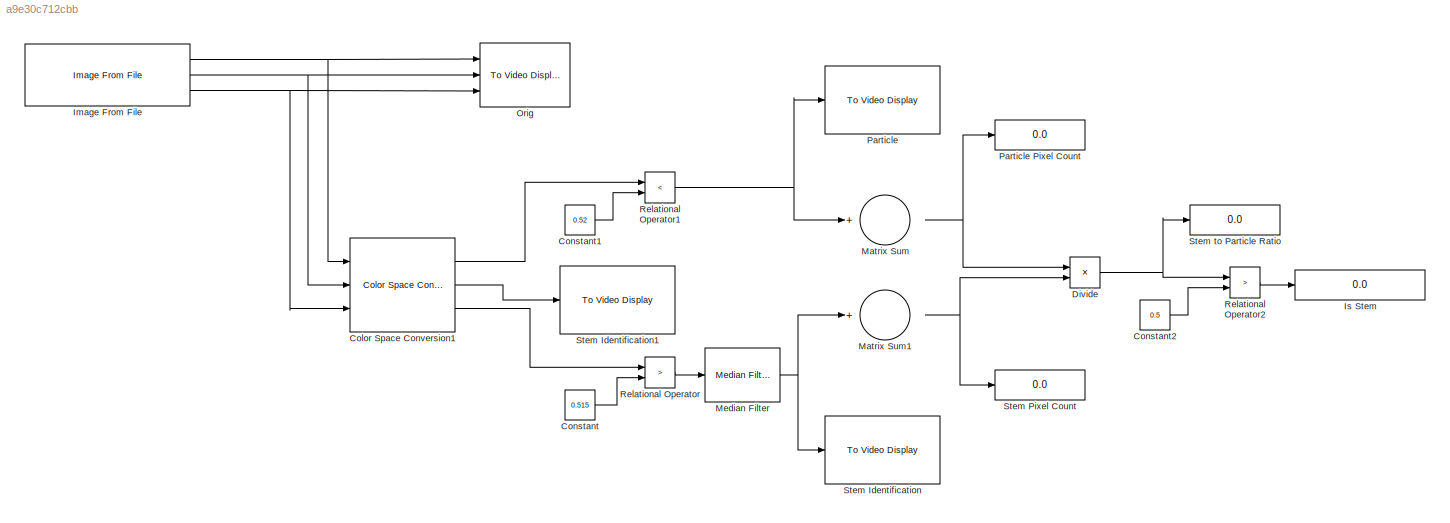
MODEL slx_a9e30c712cbb
KIND model
CONFIG AbsTol = auto
CONFIG FixedStep = auto
CONFIG MaxStep = auto
CONFIG MinStep = auto
CONFIG RelTol = 1e-3
CONFIG SampleTimeConstraint = Unconstrained
CONFIG Solver = VariableStepAuto
CONFIG SolverMode = Auto
CONFIG SolverName = VariableStepAuto
CONFIG StartTime = 0.0
CONFIG StopTime = inf
BLOCK [Reference] Color Space Conversion1  REF=visionconversions/Color Space
 Conversion
  Ports = [3, 3]
  SourceBlock = visionconversions/Color Space\n Conversion
  SourceType = Color Space Conversion
BLOCK [Constant] Constant
  Value = 0.515
BLOCK [Constant] Constant1
  Value = 0.52
BLOCK [Constant] Constant2
  Value = 0.5
BLOCK [Product] Divide
  InputSameDT = off
  Inputs = /*
  OutDataTypeStr = double
  Ports = [2, 1]
  RndMeth = Floor
  SaturateOnIntegerOverflow = off
BLOCK [Reference] Image From File  REF=visionsources/Image From File
  Ports = [0, 3]
  SourceBlock = visionsources/Image From File
  SourceType = Image From File
  Tag = vipblks_nd
BLOCK [Display] Is Stem
  Decimation = 1
  Format = long
  Ports = [1]
BLOCK [Sum] Matrix Sum
  InputSameDT = off
  Inputs = +
  OutDataTypeStr = int32
  Ports = [1, 1]
  SaturateOnIntegerOverflow = off
BLOCK [Sum] Matrix Sum1
  InputSameDT = off
  Inputs = +
  OutDataTypeStr = int32
  Ports = [1, 1]
  SaturateOnIntegerOverflow = off
BLOCK [Reference] Median Filter  REF=visionanalysis/Median Filter
  Ports = [1, 1]
  SourceBlock = visionanalysis/Median Filter
  SourceType = Median Filter
BLOCK [Reference] Orig  REF=visionsinks/To Video Display
  Ports = [3]
  SourceBlock = visionsinks/To Video Display
  SourceType = To Video Display
BLOCK [Reference] Particle  REF=visionsinks/To Video Display
  Ports = [1]
  SourceBlock = visionsinks/To Video Display
  SourceType = To Video Display
BLOCK [Display] Particle Pixel Count
  Decimation = 1
  Format = long
  Ports = [1]
BLOCK [RelationalOperator] Relational Operator
  InputSameDT = off
  Operator = >
  OutDataTypeStr = boolean
  Ports = [2, 1]
BLOCK [RelationalOperator] Relational Operator1
  InputSameDT = off
  Operator = <
  OutDataTypeStr = boolean
  Ports = [2, 1]
BLOCK [RelationalOperator] Relational Operator2
  InputSameDT = off
  Operator = >
  OutDataTypeStr = boolean
  Ports = [2, 1]
BLOCK [Reference] Stem Identification  REF=visionsinks/To Video Display
  Ports = [1]
  SourceBlock = visionsinks/To Video Display
  SourceType = To Video Display
BLOCK [Reference] Stem Identification1  REF=visionsinks/To Video Display
  Ports = [1]
  SourceBlock = visionsinks/To Video Display
  SourceType = To Video Display
BLOCK [Display] Stem Pixel Count
  Decimation = 1
  Format = long
  Ports = [1]
BLOCK [Display] Stem to Particle Ratio
  Decimation = 1
  Format = long
  Ports = [1]
LINE Color Space Conversion1:1 -> Relational Operator1:1
LINE Color Space Conversion1:2 -> Stem Identification1:1
LINE Color Space Conversion1:3 -> Relational Operator:1
LINE Constant1:1 -> Relational Operator1:2
LINE Constant2:1 -> Relational Operator2:2
LINE Constant:1 -> Relational Operator:2
NET Divide:1 -> Relational Operator2:1, Stem to Particle Ratio:1
NET Image From File:1 -> Color Space Conversion1:1, Orig:1
NET Image From File:2 -> Color Space Conversion1:2, Orig:2
NET Image From File:3 -> Color Space Conversion1:3, Orig:3
NET Matrix Sum1:1 -> Divide:2, Stem Pixel Count:1
NET Matrix Sum:1 -> Divide:1, Particle Pixel Count:1
NET Median Filter:1 -> Matrix Sum1:1, Stem Identification:1
NET Relational Operator1:1 -> Matrix Sum:1, Particle:1
LINE Relational Operator2:1 -> Is Stem:1
LINE Relational Operator:1 -> Median Filter:1
note: NET lines group one-source signal fan-out (src -> all destinations, sorted); 1:1 wires keep LINE
